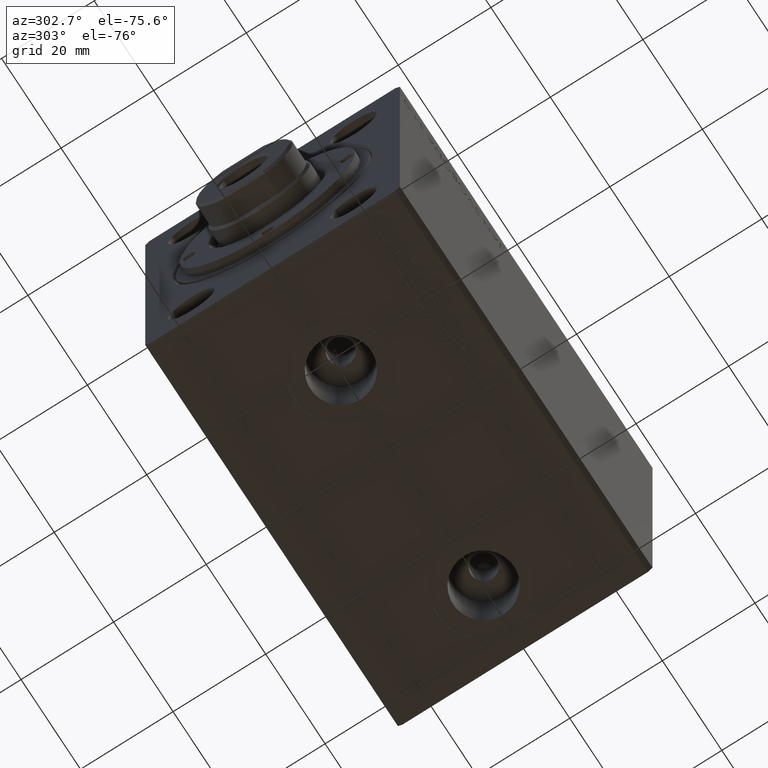
[diagram: clean part render]
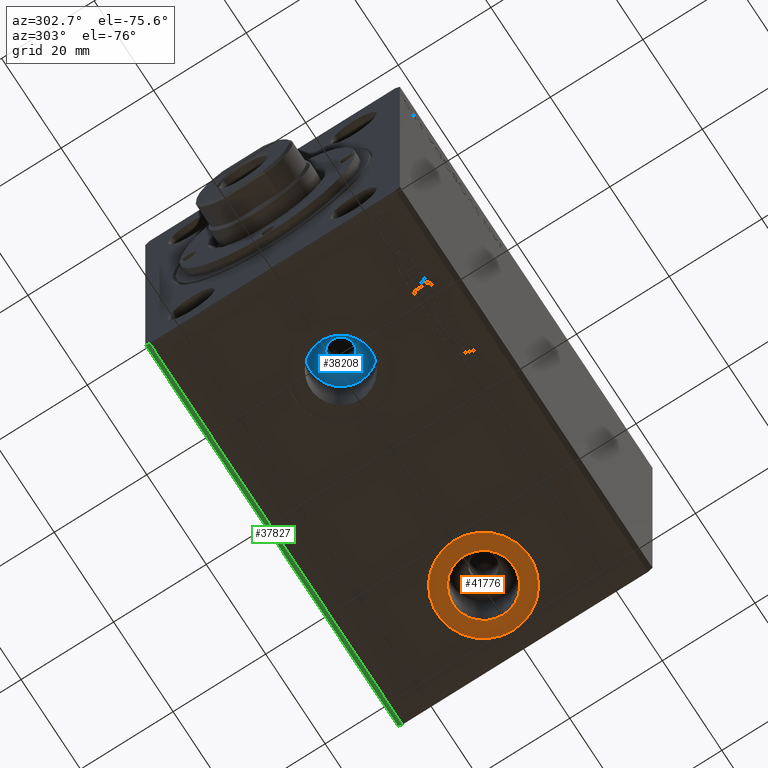
[diagram: same view with three faces highlighted in distinct colors, each labeled with its STEP entity id]
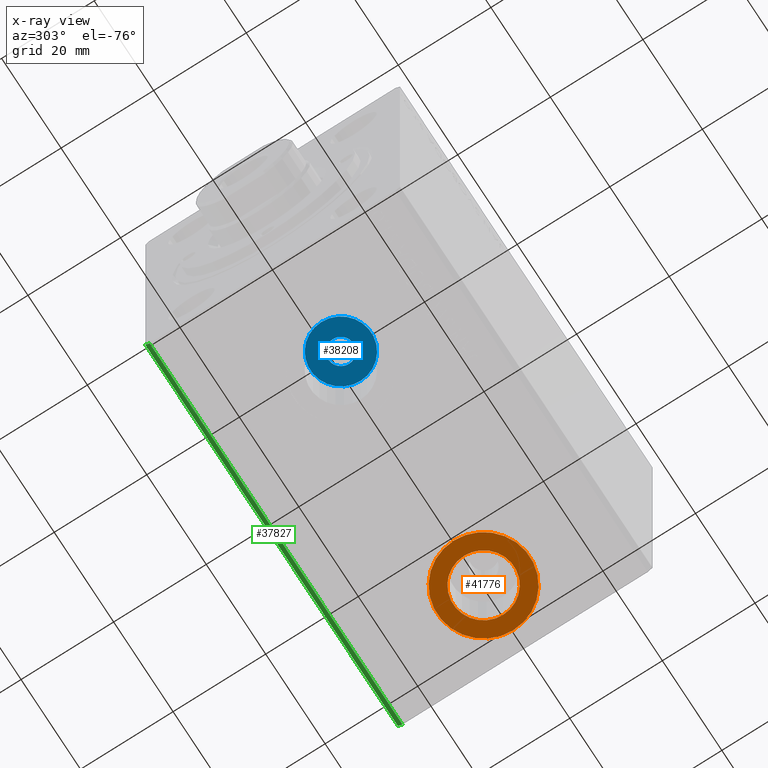
[diagram: x-ray of the same camera — body ghosted, the three highlighted faces saturated]
A machine part, auxiliary view with three faces highlighted in distinct colors.
The next image is the same camera in x-ray (body ghosted, the three faces saturated) — at least one of them is partly hidden behind the body in this view.
Their STEP definitions:

[orange] entity #41776 — the highlighted planar face has unit normal (0, 0, -1).
#1025 = DIRECTION ( 'NONE',  ( 0.000000000000000000, 0.000000000000000000, -1.000000000000000000 ) ) ;
#1597 = CIRCLE ( 'NONE', #26539, 10.00000000000000178 ) ;
#1633 = AXIS2_PLACEMENT_3D ( 'NONE', #19386, #8685, #22097 ) ;
#2768 = VERTEX_POINT ( 'NONE', #22995 ) ;
#3219 = EDGE_LOOP ( 'NONE', ( #12627, #6513 ) ) ;
#6513 = ORIENTED_EDGE ( 'NONE', *, *, #14648, .T. ) ;
#8240 = ORIENTED_EDGE ( 'NONE', *, *, #40727, .F. ) ;
#8685 = DIRECTION ( 'NONE',  ( 0.000000000000000000, 0.000000000000000000, -1.000000000000000000 ) ) ;
#8815 = CARTESIAN_POINT ( 'NONE',  ( 61.00000000000000711, -1.077874968157985048E-14, -37.39999999999999147 ) ) ;
#9243 = DIRECTION ( 'NONE',  ( 0.000000000000000000, 0.000000000000000000, -1.000000000000000000 ) ) ;
#11474 = DIRECTION ( 'NONE',  ( 0.000000000000000000, 0.000000000000000000, -1.000000000000000000 ) ) ;
#11587 = VERTEX_POINT ( 'NONE', #34469 ) ;
#12301 = CIRCLE ( 'NONE', #1633, 10.00000000000000178 ) ;
#12627 = ORIENTED_EDGE ( 'NONE', *, *, #13428, .T. ) ;
#12782 = VERTEX_POINT ( 'NONE', #27943 ) ;
#13301 = DIRECTION ( 'NONE',  ( 0.000000000000000000, 0.000000000000000000, -1.000000000000000000 ) ) ;
#13428 = EDGE_CURVE ( 'NONE', #42055, #2768, #1597, .T. ) ;
#14648 = EDGE_CURVE ( 'NONE', #2768, #42055, #12301, .T. ) ;
#14801 = CIRCLE ( 'NONE', #20534, 6.580000000000002736 ) ;
#15470 = CIRCLE ( 'NONE', #33320, 6.580000000000002736 ) ;
#19386 = CARTESIAN_POINT ( 'NONE',  ( 71.00000000000001421, -1.077874968157985048E-14, -37.39999999999999147 ) ) ;
#20534 = AXIS2_PLACEMENT_3D ( 'NONE', #25993, #9243, #22869 ) ;
#21527 = CARTESIAN_POINT ( 'NONE',  ( 71.00000000000001421, -1.077874968157985048E-14, -37.39999999999999147 ) ) ;
#22050 = FACE_BOUND ( 'NONE', #44095, .T. ) ;
#22097 = DIRECTION ( 'NONE',  ( -1.000000000000000000, 0.000000000000000000, 0.000000000000000000 ) ) ;
#22447 = ORIENTED_EDGE ( 'NONE', *, *, #23726, .F. ) ;
#22869 = DIRECTION ( 'NONE',  ( -1.000000000000000000, 0.000000000000000000, 0.000000000000000000 ) ) ;
#22995 = CARTESIAN_POINT ( 'NONE',  ( 81.00000000000000000, -9.554102882432495845E-15, -37.39999999999999147 ) ) ;
#23373 = PLANE ( 'NONE',  #43092 ) ;
#23726 = EDGE_CURVE ( 'NONE', #12782, #11587, #15470, .T. ) ;
#25993 = CARTESIAN_POINT ( 'NONE',  ( 71.00000000000001421, -1.077874968157985048E-14, -37.39999999999999147 ) ) ;
#26539 = AXIS2_PLACEMENT_3D ( 'NONE', #31594, #1025, #28253 ) ;
#27943 = CARTESIAN_POINT ( 'NONE',  ( 77.58000000000001251, -9.972932087740891440E-15, -37.39999999999999147 ) ) ;
#28253 = DIRECTION ( 'NONE',  ( -1.000000000000000000, 0.000000000000000000, 0.000000000000000000 ) ) ;
#30513 = FACE_OUTER_BOUND ( 'NONE', #3219, .T. ) ;
#31594 = CARTESIAN_POINT ( 'NONE',  ( 71.00000000000001421, -1.077874968157985048E-14, -37.39999999999999147 ) ) ;
#33320 = AXIS2_PLACEMENT_3D ( 'NONE', #21527, #11474, #42073 ) ;
#34469 = CARTESIAN_POINT ( 'NONE',  ( 64.42000000000000171, -1.077874968157985048E-14, -37.39999999999999147 ) ) ;
#36336 = CARTESIAN_POINT ( 'NONE',  ( 71.00000000000001421, -1.077874968157985048E-14, -37.39999999999999147 ) ) ;
#40727 = EDGE_CURVE ( 'NONE', #11587, #12782, #14801, .T. ) ;
#41776 = ADVANCED_FACE ( 'NONE', ( #22050, #30513 ), #23373, .T. ) ;
#42055 = VERTEX_POINT ( 'NONE', #8815 ) ;
#42073 = DIRECTION ( 'NONE',  ( -1.000000000000000000, 0.000000000000000000, 0.000000000000000000 ) ) ;
#43092 = AXIS2_PLACEMENT_3D ( 'NONE', #36336, #13301, #43242 ) ;
#43242 = DIRECTION ( 'NONE',  ( -1.000000000000000000, 0.000000000000000000, -0.000000000000000000 ) ) ;
#44095 = EDGE_LOOP ( 'NONE', ( #8240, #22447 ) ) ;

[blue] entity #38208 — the highlighted planar face has unit normal (0, 0, -1).
#2383 = DIRECTION ( 'NONE',  ( -1.000000000000000000, 0.000000000000000000, 0.000000000000000000 ) ) ;
#3090 = DIRECTION ( 'NONE',  ( -1.000000000000000000, 0.000000000000000000, -0.000000000000000000 ) ) ;
#3820 = CARTESIAN_POINT ( 'NONE',  ( 23.00000000000000000, -3.533115609439951465E-15, -23.79999999999998650 ) ) ;
#4165 = CIRCLE ( 'NONE', #15556, 6.580000000000002736 ) ;
#5869 = CARTESIAN_POINT ( 'NONE',  ( 25.75000000000000000, -3.196337739674429808E-15, -23.79999999999998650 ) ) ;
#9110 = CIRCLE ( 'NONE', #19795, 6.580000000000002736 ) ;
#10122 = EDGE_LOOP ( 'NONE', ( #34468, #41301 ) ) ;
#12180 = DIRECTION ( 'NONE',  ( 0.000000000000000000, 0.000000000000000000, -1.000000000000000000 ) ) ;
#13515 = EDGE_LOOP ( 'NONE', ( #33443, #38282 ) ) ;
#13766 = FACE_OUTER_BOUND ( 'NONE', #10122, .T. ) ;
#14363 = CIRCLE ( 'NONE', #22230, 2.749999999999999112 ) ;
#15039 = VERTEX_POINT ( 'NONE', #24185 ) ;
#15380 = VERTEX_POINT ( 'NONE', #38205 ) ;
#15556 = AXIS2_PLACEMENT_3D ( 'NONE', #27305, #27957, #41583 ) ;
#17495 = DIRECTION ( 'NONE',  ( -1.000000000000000000, 0.000000000000000000, 0.000000000000000000 ) ) ;
#18609 = EDGE_CURVE ( 'NONE', #15380, #36648, #27487, .T. ) ;
#19795 = AXIS2_PLACEMENT_3D ( 'NONE', #3820, #31046, #34617 ) ;
#20837 = AXIS2_PLACEMENT_3D ( 'NONE', #40807, #23400, #3090 ) ;
#21314 = VERTEX_POINT ( 'NONE', #30155 ) ;
#22230 = AXIS2_PLACEMENT_3D ( 'NONE', #34479, #41405, #17495 ) ;
#23400 = DIRECTION ( 'NONE',  ( 0.000000000000000000, 0.000000000000000000, -1.000000000000000000 ) ) ;
#24185 = CARTESIAN_POINT ( 'NONE',  ( 29.58000000000000185, -2.727298015600992818E-15, -23.79999999999998650 ) ) ;
#24594 = AXIS2_PLACEMENT_3D ( 'NONE', #29174, #12180, #2383 ) ;
#27305 = CARTESIAN_POINT ( 'NONE',  ( 23.00000000000000000, -3.533115609439951465E-15, -23.79999999999998650 ) ) ;
#27487 = CIRCLE ( 'NONE', #24594, 2.749999999999999112 ) ;
#27859 = EDGE_CURVE ( 'NONE', #21314, #15039, #4165, .T. ) ;
#27957 = DIRECTION ( 'NONE',  ( 0.000000000000000000, 0.000000000000000000, -1.000000000000000000 ) ) ;
#29174 = CARTESIAN_POINT ( 'NONE',  ( 23.00000000000000000, -3.533115609439951465E-15, -23.79999999999998650 ) ) ;
#30155 = CARTESIAN_POINT ( 'NONE',  ( 16.41999999999999815, -3.533115609439951465E-15, -23.79999999999998650 ) ) ;
#31046 = DIRECTION ( 'NONE',  ( 0.000000000000000000, 0.000000000000000000, -1.000000000000000000 ) ) ;
#32450 = EDGE_CURVE ( 'NONE', #36648, #15380, #14363, .T. ) ;
#33443 = ORIENTED_EDGE ( 'NONE', *, *, #18609, .F. ) ;
#34468 = ORIENTED_EDGE ( 'NONE', *, *, #27859, .T. ) ;
#34479 = CARTESIAN_POINT ( 'NONE',  ( 23.00000000000000000, -3.533115609439951465E-15, -23.79999999999998650 ) ) ;
#34617 = DIRECTION ( 'NONE',  ( -1.000000000000000000, 0.000000000000000000, 0.000000000000000000 ) ) ;
#36648 = VERTEX_POINT ( 'NONE', #5869 ) ;
#37905 = FACE_BOUND ( 'NONE', #13515, .T. ) ;
#38205 = CARTESIAN_POINT ( 'NONE',  ( 20.25000000000000000, -3.533115609439951465E-15, -23.79999999999998650 ) ) ;
#38208 = ADVANCED_FACE ( 'NONE', ( #37905, #13766 ), #40371, .T. ) ;
#38282 = ORIENTED_EDGE ( 'NONE', *, *, #32450, .F. ) ;
#40363 = EDGE_CURVE ( 'NONE', #15039, #21314, #9110, .T. ) ;
#40371 = PLANE ( 'NONE',  #20837 ) ;
#40807 = CARTESIAN_POINT ( 'NONE',  ( 23.00000000000000000, -3.533115609439951465E-15, -23.79999999999998650 ) ) ;
#41301 = ORIENTED_EDGE ( 'NONE', *, *, #40363, .T. ) ;
#41405 = DIRECTION ( 'NONE',  ( 0.000000000000000000, 0.000000000000000000, -1.000000000000000000 ) ) ;
#41583 = DIRECTION ( 'NONE',  ( -1.000000000000000000, 0.000000000000000000, 0.000000000000000000 ) ) ;

[green] entity #37827 — the highlighted planar face has unit normal (0, -0.7071, 0.7071).
#1106 = CARTESIAN_POINT ( 'NONE',  ( 85.00000000000000000, 26.50000000000000711, -37.49999999999999289 ) ) ;
#2007 = LINE ( 'NONE', #28139, #30626 ) ;
#2135 = EDGE_CURVE ( 'NONE', #38523, #6355, #2007, .T. ) ;
#3810 = EDGE_LOOP ( 'NONE', ( #39227, #15713, #8186, #16249 ) ) ;
#5710 = CARTESIAN_POINT ( 'NONE',  ( 0.000000000000000000, 26.50000000000000711, -37.49999999999999289 ) ) ;
#6355 = VERTEX_POINT ( 'NONE', #18575 ) ;
#7862 = CARTESIAN_POINT ( 'NONE',  ( 85.00000000000000000, 27.50000000000000711, -36.49999999999999289 ) ) ;
#8186 = ORIENTED_EDGE ( 'NONE', *, *, #17332, .F. ) ;
#9893 = LINE ( 'NONE', #19046, #40454 ) ;
#10641 = LINE ( 'NONE', #43938, #35123 ) ;
#11563 = DIRECTION ( 'NONE',  ( 0.000000000000000000, 0.7071067811865474617, 0.7071067811865474617 ) ) ;
#14687 = LINE ( 'NONE', #31897, #24479 ) ;
#15713 = ORIENTED_EDGE ( 'NONE', *, *, #23094, .F. ) ;
#16249 = ORIENTED_EDGE ( 'NONE', *, *, #38153, .T. ) ;
#17332 = EDGE_CURVE ( 'NONE', #30439, #28608, #14687, .T. ) ;
#18575 = CARTESIAN_POINT ( 'NONE',  ( 0.000000000000000000, 27.50000000000000711, -36.49999999999999289 ) ) ;
#19046 = CARTESIAN_POINT ( 'NONE',  ( 85.00000000000000000, 27.50000000000000711, -36.49999999999999289 ) ) ;
#21850 = DIRECTION ( 'NONE',  ( 0.000000000000000000, -0.7071067811865475727, 0.7071067811865475727 ) ) ;
#23094 = EDGE_CURVE ( 'NONE', #28608, #6355, #9893, .T. ) ;
#24260 = DIRECTION ( 'NONE',  ( -1.000000000000000000, -0.000000000000000000, -0.000000000000000000 ) ) ;
#24479 = VECTOR ( 'NONE', #11563, 1000.000000000000114 ) ;
#27896 = PLANE ( 'NONE',  #31545 ) ;
#28139 = CARTESIAN_POINT ( 'NONE',  ( 0.000000000000000000, 26.50000000000000711, -37.49999999999999289 ) ) ;
#28608 = VERTEX_POINT ( 'NONE', #7862 ) ;
#30439 = VERTEX_POINT ( 'NONE', #30721 ) ;
#30626 = VECTOR ( 'NONE', #41760, 1000.000000000000114 ) ;
#30721 = CARTESIAN_POINT ( 'NONE',  ( 85.00000000000000000, 26.50000000000000711, -37.49999999999999289 ) ) ;
#31545 = AXIS2_PLACEMENT_3D ( 'NONE', #1106, #21850, #42396 ) ;
#31676 = FACE_OUTER_BOUND ( 'NONE', #3810, .T. ) ;
#31897 = CARTESIAN_POINT ( 'NONE',  ( 85.00000000000000000, 26.50000000000000711, -37.49999999999999289 ) ) ;
#32688 = DIRECTION ( 'NONE',  ( -1.000000000000000000, -0.000000000000000000, -0.000000000000000000 ) ) ;
#35123 = VECTOR ( 'NONE', #24260, 1000.000000000000000 ) ;
#37827 = ADVANCED_FACE ( 'NONE', ( #31676 ), #27896, .F. ) ;
#38153 = EDGE_CURVE ( 'NONE', #30439, #38523, #10641, .T. ) ;
#38523 = VERTEX_POINT ( 'NONE', #5710 ) ;
#39227 = ORIENTED_EDGE ( 'NONE', *, *, #2135, .T. ) ;
#40454 = VECTOR ( 'NONE', #32688, 1000.000000000000000 ) ;
#41760 = DIRECTION ( 'NONE',  ( 0.000000000000000000, 0.7071067811865474617, 0.7071067811865474617 ) ) ;
#42396 = DIRECTION ( 'NONE',  ( 0.000000000000000000, -0.7071067811865474617, -0.7071067811865474617 ) ) ;
#43938 = CARTESIAN_POINT ( 'NONE',  ( 85.00000000000000000, 26.50000000000000711, -37.49999999999999289 ) ) ;